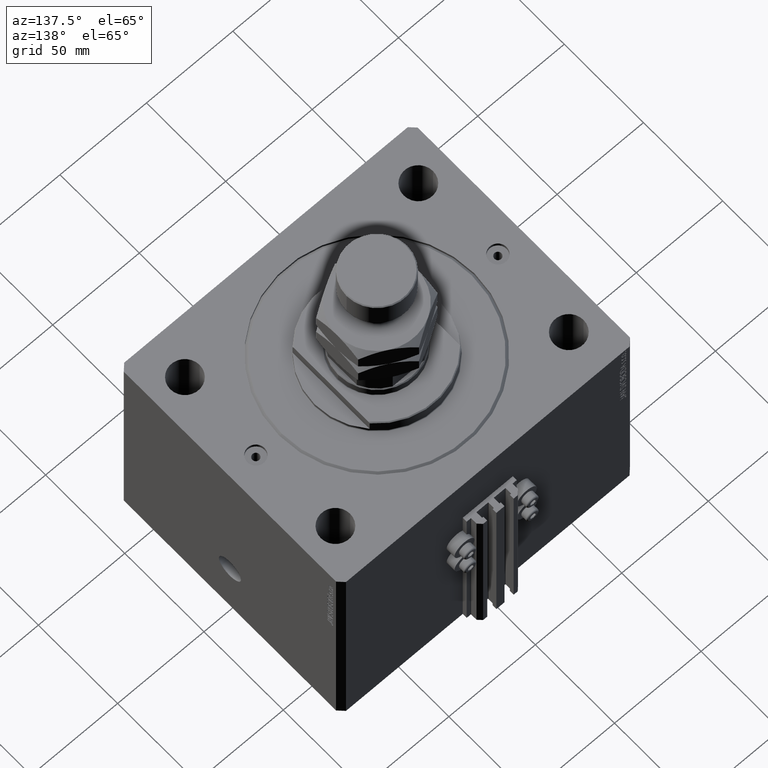
[diagram: clean part render]
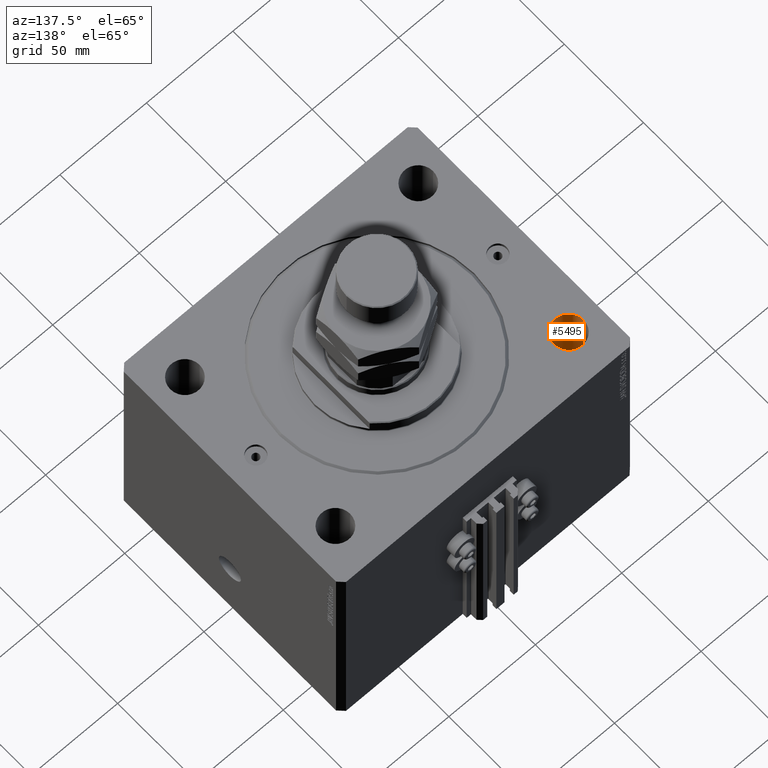
[diagram: same view with one face highlighted and labeled with its STEP entity id]
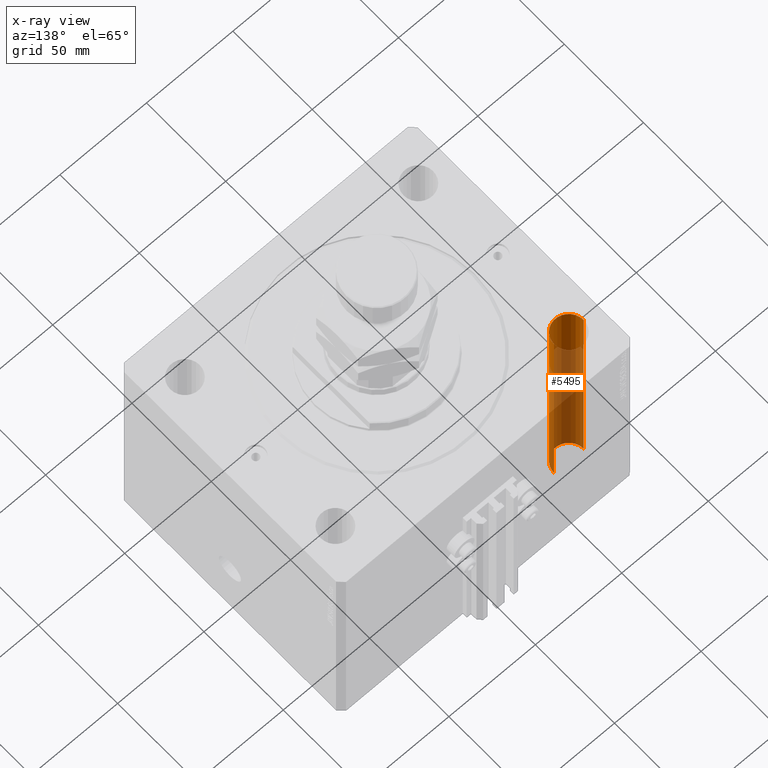
[diagram: x-ray of the same camera — body ghosted, the highlighted face saturated]
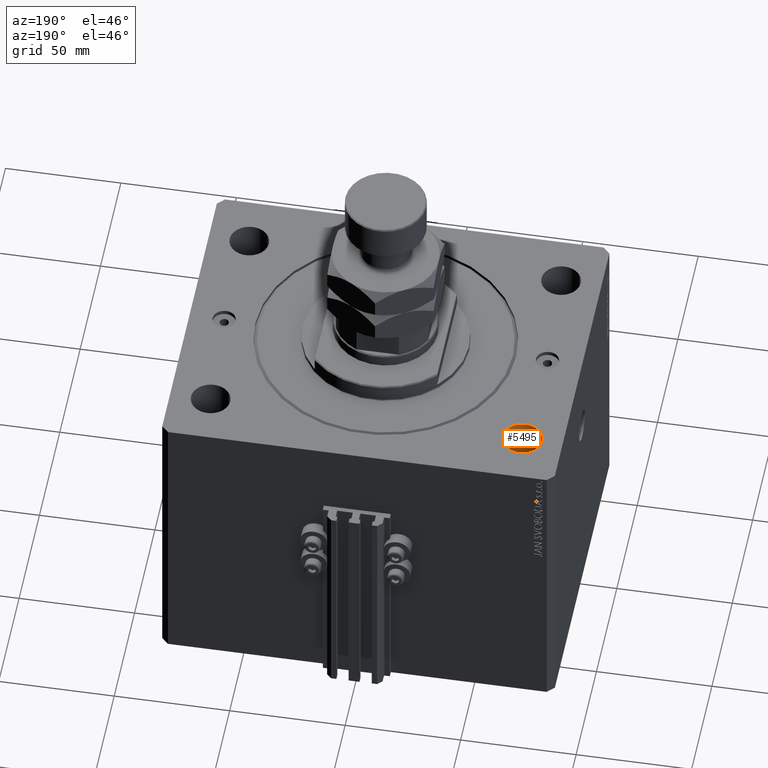
[diagram: same view with one face highlighted and labeled with its STEP entity id]
A machine part, auxiliary view. The second image highlights one B-rep face of the part: STEP entity #5495.
The next image is the same camera in x-ray: the body ghosted, the highlighted face saturated — about 73% of this face is hidden behind the body in this view.
A second angle (auxiliary view) of the same face is appended — the face is thin or edge-on in the first view.
In plain terms, the highlighted cylindrical surface (edge-blend (fillet) strip) has radius 8.5 mm, axis along (0, 0, 1).
Its self-contained STEP definition (entity closure, byte-faithful):
#3135 = CARTESIAN_POINT ( 'NONE',  ( -76.00000000000000000, 47.50000000000000000, -154.0416305603426395 ) ) ;
#3359 = DIRECTION ( 'NONE',  ( -0.000000000000000000, -0.000000000000000000, 1.000000000000000000 ) ) ;
#3608 = LINE ( 'NONE', #18692, #6907 ) ;
#5039 = VERTEX_POINT ( 'NONE', #15787 ) ;
#5266 = EDGE_CURVE ( 'NONE', #5039, #8487, #24124, .T. ) ;
#5495 = ADVANCED_FACE ( 'NONE', ( #25074 ), #48349, .F. ) ;
#6807 = ORIENTED_EDGE ( 'NONE', *, *, #26443, .F. ) ;
#6907 = VECTOR ( 'NONE', #3359, 1000.000000000000000 ) ;
#8487 = VERTEX_POINT ( 'NONE', #11103 ) ;
#10393 = EDGE_LOOP ( 'NONE', ( #24538, #12001, #19809, #6807 ) ) ;
#10442 = CARTESIAN_POINT ( 'NONE',  ( -76.00000000000000000, 47.50000000000000000, -130.0000000000000000 ) ) ;
#11103 = CARTESIAN_POINT ( 'NONE',  ( -59.00000000000001421, 47.50000000000000000, 0.000000000000000000 ) ) ;
#11957 = DIRECTION ( 'NONE',  ( 1.000000000000000000, 0.000000000000000000, 0.000000000000000000 ) ) ;
#12001 = ORIENTED_EDGE ( 'NONE', *, *, #40838, .T. ) ;
#12122 = DIRECTION ( 'NONE',  ( -0.000000000000000000, -0.000000000000000000, -1.000000000000000000 ) ) ;
#12234 = EDGE_CURVE ( 'NONE', #37326, #24016, #28492, .T. ) ;
#14162 = DIRECTION ( 'NONE',  ( -0.000000000000000000, -0.000000000000000000, 1.000000000000000000 ) ) ;
#14274 = LINE ( 'NONE', #3135, #31739 ) ;
#14403 = CARTESIAN_POINT ( 'NONE',  ( -67.50000000000000000, 47.50000000000000000, -154.0416305603426395 ) ) ;
#15787 = CARTESIAN_POINT ( 'NONE',  ( -76.00000000000000000, 47.50000000000000000, 0.000000000000000000 ) ) ;
#17019 = AXIS2_PLACEMENT_3D ( 'NONE', #34039, #32891, #11957 ) ;
#18692 = CARTESIAN_POINT ( 'NONE',  ( -59.00000000000001421, 47.50000000000000000, -154.0416305603426395 ) ) ;
#19809 = ORIENTED_EDGE ( 'NONE', *, *, #5266, .T. ) ;
#21223 = AXIS2_PLACEMENT_3D ( 'NONE', #14403, #14162, #47876 ) ;
#23270 = CARTESIAN_POINT ( 'NONE',  ( -67.50000000000000000, 47.50000000000000000, -130.0000000000000000 ) ) ;
#24016 = VERTEX_POINT ( 'NONE', #10442 ) ;
#24124 = CIRCLE ( 'NONE', #17019, 8.499999999999992895 ) ;
#24538 = ORIENTED_EDGE ( 'NONE', *, *, #12234, .T. ) ;
#25074 = FACE_OUTER_BOUND ( 'NONE', #10393, .T. ) ;
#26443 = EDGE_CURVE ( 'NONE', #37326, #8487, #3608, .T. ) ;
#27233 = DIRECTION ( 'NONE',  ( 1.000000000000000000, 0.000000000000000000, 0.000000000000000000 ) ) ;
#28492 = CIRCLE ( 'NONE', #30851, 8.499999999999992895 ) ;
#30851 = AXIS2_PLACEMENT_3D ( 'NONE', #23270, #12122, #27233 ) ;
#31739 = VECTOR ( 'NONE', #37792, 1000.000000000000000 ) ;
#32891 = DIRECTION ( 'NONE',  ( 0.000000000000000000, 0.000000000000000000, 1.000000000000000000 ) ) ;
#34039 = CARTESIAN_POINT ( 'NONE',  ( -67.50000000000000000, 47.50000000000000000, 0.000000000000000000 ) ) ;
#37326 = VERTEX_POINT ( 'NONE', #47460 ) ;
#37792 = DIRECTION ( 'NONE',  ( -0.000000000000000000, -0.000000000000000000, 1.000000000000000000 ) ) ;
#40838 = EDGE_CURVE ( 'NONE', #24016, #5039, #14274, .T. ) ;
#47460 = CARTESIAN_POINT ( 'NONE',  ( -59.00000000000001421, 47.50000000000000000, -130.0000000000000000 ) ) ;
#47876 = DIRECTION ( 'NONE',  ( 1.000000000000000000, 0.000000000000000000, 0.000000000000000000 ) ) ;
#48349 = CYLINDRICAL_SURFACE ( 'NONE', #21223, 8.499999999999992895 ) ;